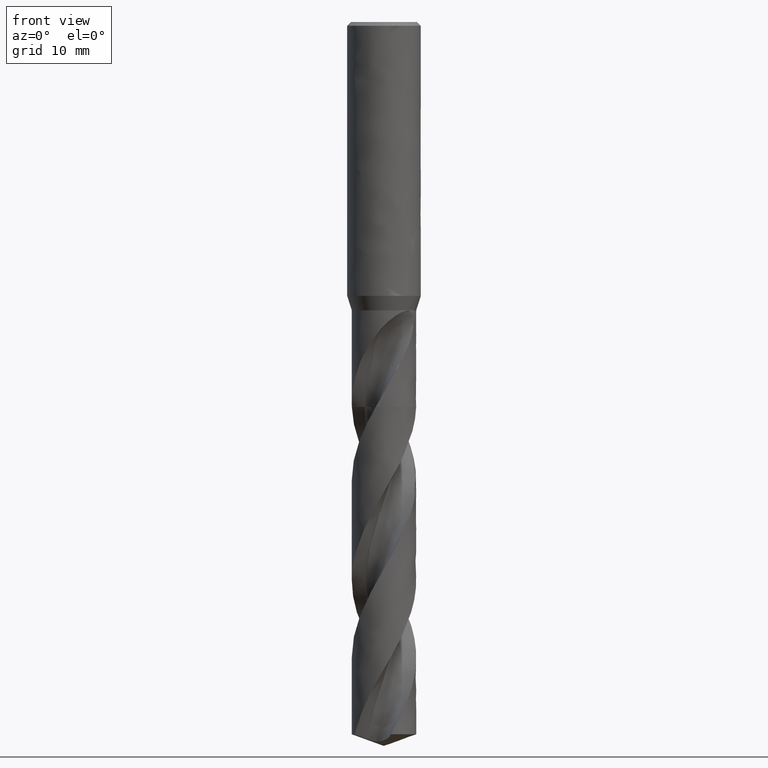
[diagram: clean part render]
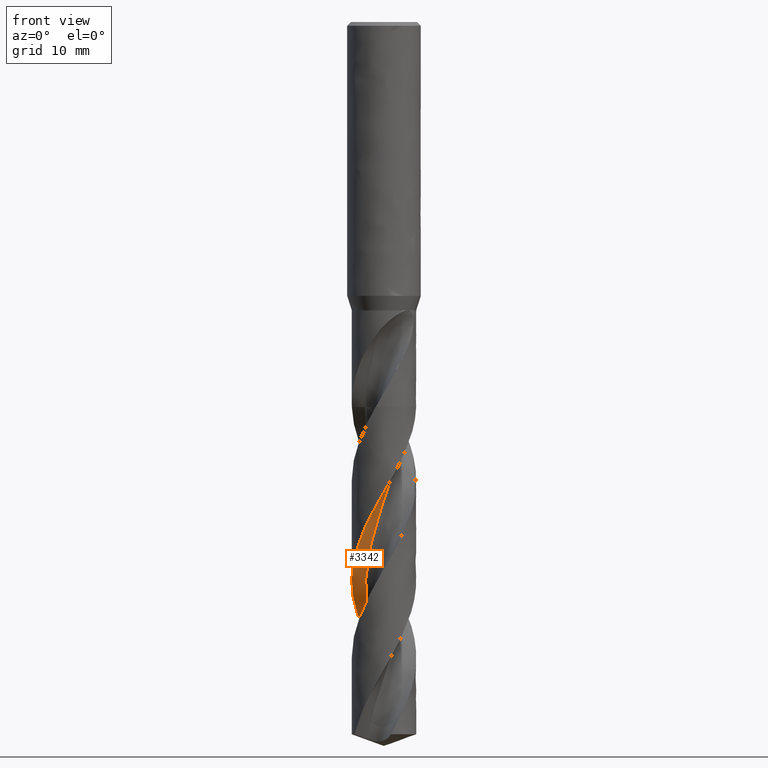
[diagram: same view with one face highlighted and labeled with its STEP entity id]
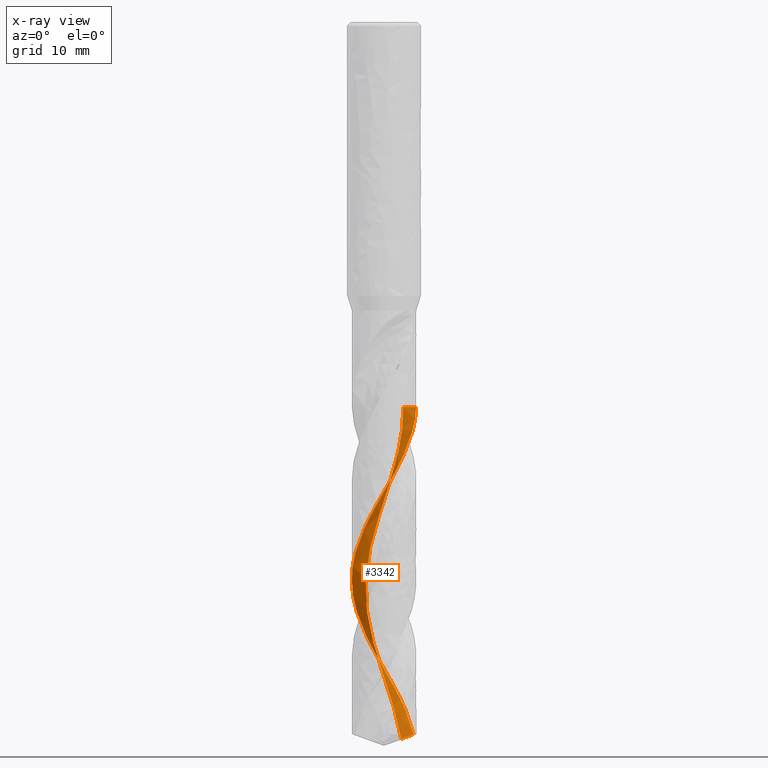
[diagram: x-ray of the same camera — body ghosted, the highlighted face saturated]
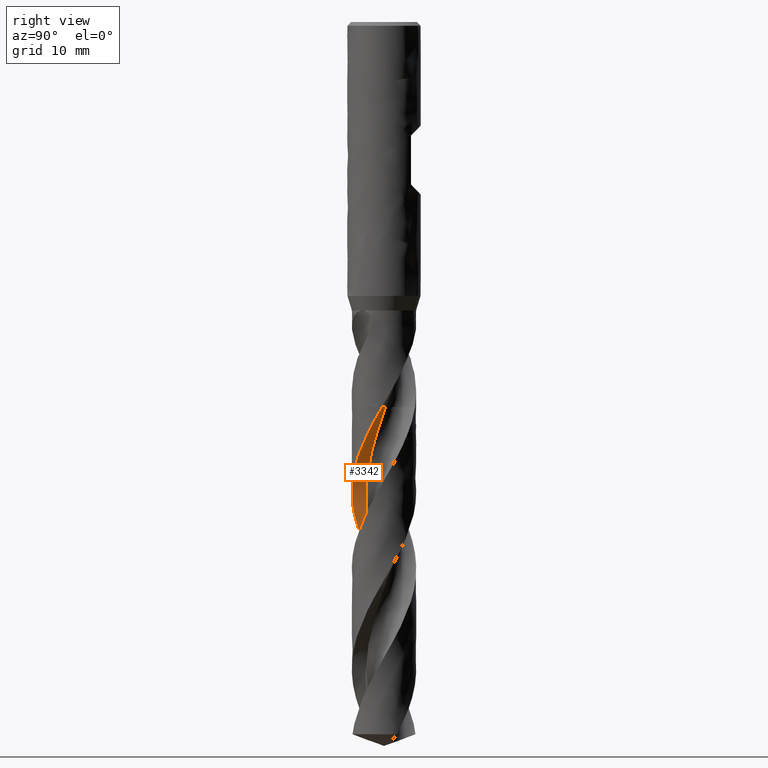
[diagram: same view with one face highlighted and labeled with its STEP entity id]
A machine part, front view. The second image highlights one B-rep face of the part: STEP entity #3342.
The next image is the same camera in x-ray: the body ghosted, the highlighted face saturated — about 0% of this face is hidden behind the body in this view.
A second angle (right view) of the same face is appended — the face is thin or edge-on in the first view.
In plain terms, the highlighted face is a freeform B-spline surface patch.
Its self-contained STEP definition (entity closure, byte-faithful):
#2056 = VERTEX_POINT('', #2057);
#2057 = CARTESIAN_POINT('', (5.24024601005015, -0.319877717500771, -62.75));
#2064 = EDGE_CURVE('', #2056, #2065, #2067, .T.);
#2065 = VERTEX_POINT('', #2066);
#2066 = CARTESIAN_POINT('', (3.1334081568016, 0.248874584782166, -62.75));
#2067 = LINE('', #2068, #2069);
#2068 = CARTESIAN_POINT('', (5.24024601005015, -0.319877717500775, -62.75));
#2069 = VECTOR('', #2070, 2.1822568412616);
#2070 = DIRECTION('', (-2.10683785324854, 0.568752302282938, 0.));
#2786 = EDGE_CURVE('', #2787, #2065, #2789, .T.);
#2787 = VERTEX_POINT('', #2788);
#2788 = CARTESIAN_POINT('', (2.79821184013639, 1.43162568454987, -116.855978291857));
#2789 = B_SPLINE_CURVE_WITH_KNOTS('', 3, (#2790, #2791, #2792, #2793, #2794, #2795, #2796, #2797, #2798, #2799, #2800, #2801, #2802, #2803, #2804, #2805, #2806, #2807, #2808, #2809, #2810, #2811, #2812, #2813, #2814, #2815, #2816, #2817, #2818, #2819, #2820, #2821, #2822, #2823, #2824, #2825, #2826, #2827, #2828, #2829, #2830, #2831, #2832, #2833, #2834, #2835, #2836, #2837, #2838, #2839, #2840, #2841, #2842, #2843, #2844, #2845, #2846, #2847, #2848), .UNSPECIFIED., .F., .U., (4, 1, 1, 1, 1, 1, 1, 1, 1, 1, 1, 1, 1, 1, 1, 1, 1, 1, 1, 1, 1, 1, 1, 1, 1, 1, 1, 1, 1, 1, 1, 1, 1, 1, 1, 1, 1, 1, 1, 1, 1, 1, 1, 1, 1, 1, 1, 1, 1, 1, 1, 1, 1, 1, 1, 1, 4), (1.19402170814299, 1.94712328767123, 2.92068493150685, 3.89424657534247, 4.86780821917808, 5.8413698630137, 6.81493150684932, 7.78849315068493, 8.76205479452055, 9.73561643835616, 10.7091780821918, 11.6827397260274, 12.656301369863, 13.6298630136986, 14.6034246575342, 15.5769863013699, 16.5505479452055, 17.5241095890411, 18.4976712328767, 19.4712328767123, 20.4447945205479, 21.4183561643836, 22.3919178082192, 23.3654794520548, 24.3390410958904, 25.312602739726, 26.2861643835616, 27.2597260273973, 28.2332876712329, 29.2068493150685, 30.1804109589041, 31.1539726027397, 32.1275342465753, 33.101095890411, 34.0746575342466, 35.0482191780822, 36.0217808219178, 36.9953424657534, 37.968904109589, 38.9424657534247, 39.9160273972603, 40.8895890410959, 41.8631506849315, 42.8367123287671, 43.8102739726027, 44.7838356164384, 45.757397260274, 46.7309589041096, 47.7045205479452, 48.6780821917808, 49.6516438356164, 50.6252054794521, 51.5987671232877, 52.5723287671233, 53.5458904109589, 54.5194520547945, 55.3), .UNSPECIFIED.);
#2790 = CARTESIAN_POINT('', (2.79821184013638, 1.43162568454987, -116.855978291857));
#2791 = CARTESIAN_POINT('', (2.75712214684186, 1.5070804061927, -116.604944432014));
#2792 = CARTESIAN_POINT('', (2.65598967799593, 1.67606990976741, -116.029390024226));
#2793 = CARTESIAN_POINT('', (2.47423372732643, 1.92400677676864, -115.129315068493));
#2794 = CARTESIAN_POINT('', (2.25116967736585, 2.16944879818279, -114.155753424658));
#2795 = CARTESIAN_POINT('', (2.00420425036731, 2.3895861067081, -113.182191780822));
#2796 = CARTESIAN_POINT('', (1.73615382624428, 2.58214062600635, -112.208630136986));
#2797 = CARTESIAN_POINT('', (1.45004508709054, 2.74514078872854, -111.235068493151));
#2798 = CARTESIAN_POINT('', (1.14908410278058, 2.87694196060475, -110.261506849315));
#2799 = CARTESIAN_POINT('', (0.836621102513387, 2.97624172467088, -109.287945205479));
#2800 = CARTESIAN_POINT('', (0.516114663338234, 3.04209199386261, -108.314383561644));
#2801 = CARTESIAN_POINT('', (0.19109478275684, 3.07390728948075, -107.340821917808));
#2802 = CARTESIAN_POINT('', (-0.134874545802901, 3.07146927486186, -106.367260273973));
#2803 = CARTESIAN_POINT('', (-0.458232939868773, 3.0349274795123, -105.393698630137));
#2804 = CARTESIAN_POINT('', (-0.775461020951674, 2.96479623763426, -104.420136986301));
#2805 = CARTESIAN_POINT('', (-1.08311722391051, 2.86194788817522, -103.446575342466));
#2806 = CARTESIAN_POINT('', (-1.37787365482435, 2.72760232342942, -102.47301369863));
#2807 = CARTESIAN_POINT('', (-1.65655064241312, 2.56331300738392, -101.499452054795));
#2808 = CARTESIAN_POINT('', (-1.91614964219238, 2.37094961904654, -100.525890410959));
#2809 = CARTESIAN_POINT('', (-2.15388417034934, 2.15267750803564, -99.5523287671233));
#2810 = CARTESIAN_POINT('', (-2.36720846492319, 1.91093417990146, -98.5787671232877));
#2811 = CARTESIAN_POINT('', (-2.55384359523886, 1.64840305661178, -97.6052054794521));
#2812 = CARTESIAN_POINT('', (-2.71180076640357, 1.36798478316551, -96.6316438356164));
#2813 = CARTESIAN_POINT('', (-2.83940159379618, 1.07276637417313, -95.6580821917808));
#2814 = CARTESIAN_POINT('', (-2.93529515259231, 0.765988514274105, -94.6845205479452));
#2815 = CARTESIAN_POINT('', (-2.99847163919656, 0.451011343282998, -93.7109589041096));
#2816 = CARTESIAN_POINT('', (-3.02827251470304, 0.131279070828892, -92.737397260274));
#2817 = CARTESIAN_POINT('', (-3.02439703487661, -0.189716224134706, -91.7638356164384));
#2818 = CARTESIAN_POINT('', (-2.98690510632807, -0.508471246303968, -90.7902739726027));
#2819 = CARTESIAN_POINT('', (-2.91621644423224, -0.821508222969054, -89.8167123287671));
#2820 = CARTESIAN_POINT('', (-2.81310604278971, -1.12541136197293, -88.8431506849315));
#2821 = CARTESIAN_POINT('', (-2.67869600534055, -1.41686266471232, -87.8695890410959));
#2822 = CARTESIAN_POINT('', (-2.5144438162857, -1.69267673658662, -86.8960273972603));
#2823 = CARTESIAN_POINT('', (-2.32212717144373, -1.94983424701387, -85.9224657534247));
#2824 = CARTESIAN_POINT('', (-2.10382551686197, -2.18551370409742, -84.9489041095891));
#2825 = CARTESIAN_POINT('', (-1.86189847811263, -2.39712122512495, -83.9753424657534));
#2826 = CARTESIAN_POINT('', (-1.59896139245043, -2.58231800317807, -83.0017808219178));
#2827 = CARTESIAN_POINT('', (-1.31785818461492, -2.73904519205562, -82.0282191780822));
#2828 = CARTESIAN_POINT('', (-1.02163185327022, -2.86554595628161, -81.0546575342466));
#2829 = CARTESIAN_POINT('', (-0.713492858847356, -2.96038445996452, -80.081095890411));
#2830 = CARTESIAN_POINT('', (-0.396785724668816, -3.02246159746644, -79.1075342465753));
#2831 = CARTESIAN_POINT('', (-0.0749541814927044, -3.05102729997496, -78.1339726027397));
#2832 = CARTESIAN_POINT('', (0.248494799163272, -3.04568928487573, -77.1604109589041));
#2833 = CARTESIAN_POINT('', (0.570027725516175, -3.00641814901605, -76.1868493150685));
#2834 = CARTESIAN_POINT('', (0.886121693711166, -2.93354874221941, -75.2132876712329));
#2835 = CARTESIAN_POINT('', (1.19330151223743, -2.82777779347776, -74.2397260273973));
#2836 = CARTESIAN_POINT('', (1.48817646939561, -2.69015779867668, -73.2661643835616));
#2837 = CARTESIAN_POINT('', (1.76747637178634, -2.52208721559386, -72.292602739726));
#2838 = CARTESIAN_POINT('', (2.02808648901892, -2.32529704734645, -71.3190410958904));
#2839 = CARTESIAN_POINT('', (2.26708104103188, -2.10183393498828, -70.3454794520548));
#2840 = CARTESIAN_POINT('', (2.4817549047093, -1.85403990132322, -69.3719178082192));
#2841 = CARTESIAN_POINT('', (2.66965312713995, -1.58452897267362, -68.3983561643836));
#2842 = CARTESIAN_POINT('', (2.82859824319863, -1.29616074773671, -67.4247945205479));
#2843 = CARTESIAN_POINT('', (2.95671395599351, -0.992011721723331, -66.4512328767123));
#2844 = CARTESIAN_POINT('', (3.05244921651772, -0.675342557634139, -65.4776712328767));
#2845 = CARTESIAN_POINT('', (3.11458641609078, -0.349569392316449, -64.5041095890411));
#2846 = CARTESIAN_POINT('', (3.14046236696781, -0.0401083352556175, -63.5948858447489));
#2847 = CARTESIAN_POINT('', (3.13816336359385, 0.15994654027839, -63.0101826484018));
#2848 = CARTESIAN_POINT('', (3.1334081568016, 0.248874584782166, -62.75));
#3342 = ADVANCED_FACE('', (#3343), #3588, .T.);
#3343 = FACE_OUTER_BOUND('', #3344, .T.);
#3344 = EDGE_LOOP('', (#3345, #3346, #3460, #3556, #3587));
#3345 = ORIENTED_EDGE('', *, *, #2064, .F.);
#3346 = ORIENTED_EDGE('', *, *, #3347, .T.);
#3347 = EDGE_CURVE('', #2056, #3348, #3350, .T.);
#3348 = VERTEX_POINT('', #3349);
#3349 = CARTESIAN_POINT('', (-5.25, 5.89236742624732E-15, -90.9796627950167));
#3350 = B_SPLINE_CURVE_WITH_KNOTS('', 3, (#3351, #3352, #3353, #3354, #3355, #3356, #3357, #3358, #3359, #3360, #3361, #3362, #3363, #3364, #3365, #3366, #3367, #3368, #3369, #3370, #3371, #3372, #3373, #3374, #3375, #3376, #3377, #3378, #3379, #3380, #3381, #3382, #3383, #3384, #3385, #3386, #3387, #3388, #3389, #3390, #3391, #3392, #3393, #3394, #3395, #3396, #3397, #3398, #3399, #3400, #3401, #3402, #3403, #3404, #3405, #3406, #3407, #3408, #3409, #3410, #3411, #3412, #3413, #3414, #3415, #3416, #3417, #3418, #3419, #3420, #3421, #3422, #3423, #3424, #3425, #3426, #3427, #3428, #3429, #3430, #3431, #3432, #3433, #3434, #3435, #3436, #3437, #3438, #3439, #3440, #3441, #3442, #3443, #3444, #3445, #3446, #3447, #3448, #3449, #3450, #3451, #3452, #3453, #3454, #3455, #3456, #3457, #3458, #3459), .UNSPECIFIED., .F., .U., (4, 3, 3, 3, 3, 3, 3, 3, 3, 3, 3, 3, 3, 3, 3, 3, 3, 3, 3, 3, 3, 3, 3, 3, 3, 3, 3, 3, 3, 3, 3, 3, 3, 3, 3, 3, 4), (14.9688680659142, 15.0260842238977, 16.0257031560949, 17.0250078426944, 18.024000214281, 19.0226939592272, 20.0210955277888, 21.0192118940035, 22.0170479268412, 23.014607262398, 24.0118921935853, 25.0089037212964, 26.0056415733878, 27.0021041892136, 27.9982887869922, 28.9941914605201, 29.9898069228699, 30.6538739336762, 30.8508340877513, 30.938403012127, 31.9382323911899, 32.9377349861407, 33.9369236081959, 34.9358089604225, 35.9343998715412, 36.9327036311775, 37.9307261152791, 38.9284717998922, 39.9259438375042, 40.9231441075055, 41.9200732430161, 42.9167306353677, 43.9131144166665, 44.9092214245279, 45.90504725292, 46.9005861803001, 47.5004139305596), .UNSPECIFIED.);
#3351 = CARTESIAN_POINT('', (5.24024601005015, -0.319877717500771, -62.75));
#3352 = CARTESIAN_POINT('', (5.23966712103333, -0.329361094099611, -62.766537038686));
#3353 = CARTESIAN_POINT('', (5.2390624758765, -0.338843090361348, -62.7830746295433));
#3354 = CARTESIAN_POINT('', (5.23843212116814, -0.348322999404445, -62.7996117747076));
#3355 = CARTESIAN_POINT('', (5.22741924433967, -0.513945734117226, -63.0885309187637));
#3356 = CARTESIAN_POINT('', (5.20854260749343, -0.679062865483781, -63.3775471540164));
#3357 = CARTESIAN_POINT('', (5.18189842596892, -0.842869327324477, -63.6664830918331));
#3358 = CARTESIAN_POINT('', (5.15526262045297, -1.00662429408256, -63.9553281981904));
#3359 = CARTESIAN_POINT('', (5.12084880734559, -1.16915656477089, -64.2442560919104));
#3360 = CARTESIAN_POINT('', (5.07883470131806, -1.32963832551899, -64.5331108479762));
#3361 = CARTESIAN_POINT('', (5.0368337260566, -1.49006993052995, -64.8218753275948));
#3362 = CARTESIAN_POINT('', (4.98721424114837, -1.64854142266862, -65.1107273773568));
#3363 = CARTESIAN_POINT('', (4.93022882996327, -1.80425710036001, -65.3995051416182));
#3364 = CARTESIAN_POINT('', (4.87326045330454, -1.9599262302989, -65.6881965821639));
#3365 = CARTESIAN_POINT('', (4.80889853796367, -2.11292839126693, -65.9769736605336));
#3366 = CARTESIAN_POINT('', (4.73747038938871, -2.26249294135151, -66.2656767723086));
#3367 = CARTESIAN_POINT('', (4.66606313772865, -2.41201373504957, -66.5542954215225));
#3368 = CARTESIAN_POINT('', (4.58755409449519, -2.55818214068134, -66.8430001244535));
#3369 = CARTESIAN_POINT('', (4.5023411296256, -2.70026375609526, -67.1316309495421));
#3370 = CARTESIAN_POINT('', (4.41715250660235, -2.84230478462366, -67.4201793246514));
#3371 = CARTESIAN_POINT('', (4.32521651120956, -2.98034024360326, -67.708813681031));
#3372 = CARTESIAN_POINT('', (4.22699778102286, -3.11367785090684, -67.9973740448637));
#3373 = CARTESIAN_POINT('', (4.1288066367863, -3.2469780086875, -68.2858533629346));
#3374 = CARTESIAN_POINT('', (4.02428224523727, -3.37565636677333, -68.5744187247562));
#3375 = CARTESIAN_POINT('', (3.91395159676723, -3.49906886159207, -68.8629100659716));
#3376 = CARTESIAN_POINT('', (3.8036515426929, -3.62244713445388, -69.1513214093045));
#3377 = CARTESIAN_POINT('', (3.68748811699465, -3.74062999398604, -69.4398188295373));
#3378 = CARTESIAN_POINT('', (3.56604572655345, -3.85302710555348, -69.7282421958263));
#3379 = CARTESIAN_POINT('', (3.4446367419673, -3.96539329940263, -70.0165862238453));
#3380 = CARTESIAN_POINT('', (3.31788559450252, -4.07203813100751, -70.3050162835063));
#3381 = CARTESIAN_POINT('', (3.18642890354547, -4.17242984873922, -70.593372353264));
#3382 = CARTESIAN_POINT('', (3.05500825115189, -4.27279404430173, -70.8816493708377));
#3383 = CARTESIAN_POINT('', (2.91881315256117, -4.36696315335555, -71.1700122805115));
#3384 = CARTESIAN_POINT('', (2.77852687298224, -4.45446836514926, -71.4583013648669));
#3385 = CARTESIAN_POINT('', (2.63827910141792, -4.54194955711733, -71.7465113150382));
#3386 = CARTESIAN_POINT('', (2.49386586122091, -4.62281824121105, -72.0348068977431));
#3387 = CARTESIAN_POINT('', (2.34601122623537, -4.69667236736581, -72.3230289418651));
#3388 = CARTESIAN_POINT('', (2.19819741939487, -4.77050609965889, -72.6111713971976));
#3389 = CARTESIAN_POINT('', (2.04686287106071, -4.83736971521691, -72.8993991376746));
#3390 = CARTESIAN_POINT('', (1.89276617528355, -4.89693130498095, -73.1875536820729));
#3391 = CARTESIAN_POINT('', (1.73871247325421, -4.95647627676394, -73.4756278299139));
#3392 = CARTESIAN_POINT('', (1.58181291656034, -5.00875624508358, -73.7637869888822));
#3393 = CARTESIAN_POINT('', (1.42285346173849, -5.05351244447056, -74.0518731492008));
#3394 = CARTESIAN_POINT('', (1.26393899308217, -5.09825597767298, -74.3398777799765));
#3395 = CARTESIAN_POINT('', (1.10287784570432, -5.13550478149183, -74.6279673480361));
#3396 = CARTESIAN_POINT('', (0.940475652696822, -5.1650755605978, -74.9159839381649));
#3397 = CARTESIAN_POINT('', (0.778120295315369, -5.19463781170347, -75.2039174663777));
#3398 = CARTESIAN_POINT('', (0.614335311228707, -5.21654276732008, -75.491935976695));
#3399 = CARTESIAN_POINT('', (0.449938405644798, -5.23068403090136, -75.7798814359902));
#3400 = CARTESIAN_POINT('', (0.340287073574008, -5.24011613294333, -75.9719385982787));
#3401 = CARTESIAN_POINT('', (0.230330534271585, -5.2460993313729, -76.1640220346262));
#3402 = CARTESIAN_POINT('', (0.120312401114331, -5.24862124049146, -76.3560844804899));
#3403 = CARTESIAN_POINT('', (0.0876813742675234, -5.24936923067991, -76.4130495883988));
#3404 = CARTESIAN_POINT('', (0.0550434185966156, -5.24981290261519, -76.4700155362941));
#3405 = CARTESIAN_POINT('', (0.0224049291365836, -5.24995219208235, -76.5269811094562));
#3406 = CARTESIAN_POINT('', (0.00789378383064761, -5.25001412049053, -76.5523081305061));
#3407 = CARTESIAN_POINT('', (-0.00661756717172762, -5.25001588380369, -76.5776352522724));
#3408 = CARTESIAN_POINT('', (-0.0211285621682599, -5.24995748400505, -76.6029623678238));
#3409 = CARTESIAN_POINT('', (-0.186809701001509, -5.24929069684485, -76.8921379446137));
#3410 = CARTESIAN_POINT('', (-0.352493745323446, -5.2407720679147, -77.1813998943132));
#3411 = CARTESIAN_POINT('', (-0.517348869656438, -5.22444735326763, -77.4705875328021));
#3412 = CARTESIAN_POINT('', (-0.68215011276072, -5.2081279741883, -77.7596806532385));
#3413 = CARTESIAN_POINT('', (-0.846212513137835, -5.18399876218975, -78.0488600736166));
#3414 = CARTESIAN_POINT('', (-1.00871354762849, -5.15218370973253, -78.3379652800251));
#3415 = CARTESIAN_POINT('', (-1.17116353580813, -5.12037865131053, -78.6269796700624));
#3416 = CARTESIAN_POINT('', (-1.332141398755, -5.08087530344493, -78.9160801673941));
#3417 = CARTESIAN_POINT('', (-1.49084077512361, -5.03387462927215, -79.2051066758962));
#3418 = CARTESIAN_POINT('', (-1.64949198367725, -4.98688822056045, -79.4940454602011));
#3419 = CARTESIAN_POINT('', (-1.80595274704935, -4.93238335691501, -79.7830700166711));
#3420 = CARTESIAN_POINT('', (-1.95943952121383, -4.87063617638453, -80.0720209562921));
#3421 = CARTESIAN_POINT('', (-2.11288105213218, -4.80890719705022, -80.3608867219394));
#3422 = CARTESIAN_POINT('', (-2.26343495718692, -4.7399061136944, -80.6498378627509));
#3423 = CARTESIAN_POINT('', (-2.41034737703665, -4.66398172402215, -80.9387157414644));
#3424 = CARTESIAN_POINT('', (-2.55721755123939, -4.58807916691495, -81.2275105514155));
#3425 = CARTESIAN_POINT('', (-2.70052982241176, -4.50521517502392, -81.5163905029161));
#3426 = CARTESIAN_POINT('', (-2.83956723975815, -4.41580772802579, -81.8051973475361));
#3427 = CARTESIAN_POINT('', (-2.97856548283164, -4.32642547188487, -82.0939228198294));
#3428 = CARTESIAN_POINT('', (-3.11336829362876, -4.23045395279705, -82.3827334047393));
#3429 = CARTESIAN_POINT('', (-3.24330246274528, -4.12837608935407, -82.6714708618387));
#3430 = CARTESIAN_POINT('', (-3.37320059488655, -4.0263265369971, -82.9601282381969));
#3431 = CARTESIAN_POINT('', (-3.49830426208016, -3.91811791818281, -83.2488708114367));
#3432 = CARTESIAN_POINT('', (-3.61799008042615, -3.8042933348965, -83.5375401480878));
#3433 = CARTESIAN_POINT('', (-3.73764307310748, -3.69049996974157, -83.8261303127619));
#3434 = CARTESIAN_POINT('', (-3.85194641987162, -3.57103173397283, -84.1148057907955));
#3435 = CARTESIAN_POINT('', (-3.96033192579063, -3.4464867673565, -84.4034079133704));
#3436 = CARTESIAN_POINT('', (-4.06868790138811, -3.32197573380971, -84.6919314044586));
#3437 = CARTESIAN_POINT('', (-4.17118781201211, -3.1923235020801, -84.980540287253));
#3438 = CARTESIAN_POINT('', (-4.26732333702956, -3.05817781321538, -85.2690757527003));
#3439 = CARTESIAN_POINT('', (-4.36343272320871, -2.92406859799004, -85.557532766588));
#3440 = CARTESIAN_POINT('', (-4.45323280823631, -2.78539636759098, -85.8460751528369));
#3441 = CARTESIAN_POINT('', (-4.53627920356441, -2.64285281226727, -86.1345441730796));
#3442 = CARTESIAN_POINT('', (-4.61930296208814, -2.50034811149664, -86.4229345623745));
#3443 = CARTESIAN_POINT('', (-4.69562126085119, -2.35389773741419, -86.711410158358));
#3444 = CARTESIAN_POINT('', (-4.76485712626602, -2.20423151376436, -86.9998125981837));
#3445 = CARTESIAN_POINT('', (-4.8340739844491, -2.05460637778753, -87.2881358632641));
#3446 = CARTESIAN_POINT('', (-4.89624964051928, -1.901686391867, -87.576543985647));
#3447 = CARTESIAN_POINT('', (-4.95107749304406, -1.74623356337935, -87.8648793540329));
#3448 = CARTESIAN_POINT('', (-5.00589011560074, -1.59082391625865, -88.1531346292131));
#3449 = CARTESIAN_POINT('', (-5.05338892381314, -1.43279796563538, -88.4414743107911));
#3450 = CARTESIAN_POINT('', (-5.09334029407812, -1.27294330145547, -88.7297416520437));
#3451 = CARTESIAN_POINT('', (-5.13328038693514, -1.11313376079069, -89.0179276216591));
#3452 = CARTESIAN_POINT('', (-5.16569929271198, -0.95140854314499, -89.3061977188048));
#3453 = CARTESIAN_POINT('', (-5.19043855548729, -0.788573142905187, -89.5943956624028));
#3454 = CARTESIAN_POINT('', (-5.21517069079179, -0.625784656131373, -89.8825105751341));
#3455 = CARTESIAN_POINT('', (-5.23224123773791, -0.461797070414561, -90.1707095833986));
#3456 = CARTESIAN_POINT('', (-5.24156826593926, -0.297425811757177, -90.4588364109474));
#3457 = CARTESIAN_POINT('', (-5.24718794608311, -0.198389561565276, -90.6324373239853));
#3458 = CARTESIAN_POINT('', (-5.25, -0.0991881568640129, -90.8060576505004));
#3459 = CARTESIAN_POINT('', (-5.25, 5.54368800757598E-15, -90.9796627950167));
#3460 = ORIENTED_EDGE('', *, *, #3461, .F.);
#3461 = EDGE_CURVE('', #3462, #3348, #3464, .T.);
#3462 = VERTEX_POINT('', #3463);
#3463 = CARTESIAN_POINT('', (4.80287028202575, 2.12012665990358, -116.089156270102));
#3464 = B_SPLINE_CURVE_WITH_KNOTS('', 3, (#3465, #3466, #3467, #3468, #3469, #3470, #3471, #3472, #3473, #3474, #3475, #3476, #3477, #3478, #3479, #3480, #3481, #3482, #3483, #3484, #3485, #3486, #3487, #3488, #3489, #3490, #3491, #3492, #3493, #3494, #3495, #3496, #3497, #3498, #3499, #3500, #3501, #3502, #3503, #3504, #3505, #3506, #3507, #3508, #3509, #3510, #3511, #3512, #3513, #3514, #3515, #3516, #3517, #3518, #3519, #3520, #3521, #3522, #3523, #3524, #3525, #3526, #3527, #3528, #3529, #3530, #3531, #3532, #3533, #3534, #3535, #3536, #3537, #3538, #3539, #3540, #3541, #3542, #3543, #3544, #3545, #3546, #3547, #3548, #3549, #3550, #3551, #3552, #3553, #3554, #3555), .UNSPECIFIED., .F., .U., (4, 3, 3, 3, 3, 3, 3, 3, 3, 3, 3, 3, 3, 3, 3, 3, 3, 3, 3, 3, 3, 3, 3, 3, 3, 3, 3, 3, 3, 3, 4), (0., 0.998476892731745, 1.99667517175775, 2.99459945694597, 3.99225321677274, 4.98963867367258, 5.9867568062712, 6.98360737422144, 7.98018891065984, 8.97649868567247, 9.97253265852171, 10.9682855076789, 11.9637506913314, 12.2591249051962, 13.258941329395, 14.2584369561428, 15.2576239874839, 16.2565126250731, 17.2551112835027, 18.2534267572483, 19.2514643492285, 20.2492279669098, 21.2467201903225, 22.2439423267237, 23.2408945999594, 24.2375761083415, 25.2339847347232, 26.2301171026012, 27.2259685086889, 28.2215328296206, 28.898817715189), .UNSPECIFIED.);
#3465 = CARTESIAN_POINT('', (4.80287028202576, 2.12012665990357, -116.089156270102));
#3466 = CARTESIAN_POINT('', (4.73644094104236, 2.27061366320281, -115.799823062389));
#3467 = CARTESIAN_POINT('', (4.66290923721738, 2.41802473122039, -115.510417485511));
#3468 = CARTESIAN_POINT('', (4.58263608362685, 2.56162966196154, -115.221096305383));
#3469 = CARTESIAN_POINT('', (4.50238532935368, 2.70519452136784, -114.931855857065));
#3470 = CARTESIAN_POINT('', (4.41535442904348, 2.8450313494641, -114.642543010363));
#3471 = CARTESIAN_POINT('', (4.32197075278374, 2.98044775362395, -114.353314768564));
#3472 = CARTESIAN_POINT('', (4.22861270925888, 3.11582698755313, -114.06416591656));
#3473 = CARTESIAN_POINT('', (4.12885646585285, 3.24685917806179, -113.774944448959));
#3474 = CARTESIAN_POINT('', (4.02319194850216, 3.37289586935432, -113.485807661078));
#3475 = CARTESIAN_POINT('', (3.9175560755408, 3.49889839360435, -113.196749254728));
#3476 = CARTESIAN_POINT('', (3.80595975972225, 3.61997414556685, -112.907618361791));
#3477 = CARTESIAN_POINT('', (3.68895173850908, 3.73552339986659, -112.618571948809));
#3478 = CARTESIAN_POINT('', (3.57197518472061, 3.85104157905353, -112.329603270209));
#3479 = CARTESIAN_POINT('', (3.44952796834872, 3.96109728064261, -112.040562393185));
#3480 = CARTESIAN_POINT('', (3.32221318575102, 4.06514446833346, -111.751605666431));
#3481 = CARTESIAN_POINT('', (3.19493252670611, 4.16916376877014, -111.462726387323));
#3482 = CARTESIAN_POINT('', (3.06271870736118, 4.26723345941724, -111.173775284095));
#3483 = CARTESIAN_POINT('', (2.92622414206581, 4.35886593856605, -110.884907941984));
#3484 = CARTESIAN_POINT('', (2.78976620344402, 4.45047382924208, -110.596118113947));
#3485 = CARTESIAN_POINT('', (2.64895570830606, 4.53569766804187, -110.307256808139));
#3486 = CARTESIAN_POINT('', (2.50448859069148, 4.6141127965294, -110.018478936797));
#3487 = CARTESIAN_POINT('', (2.36006046207717, 4.69250676222558, -109.729779001255));
#3488 = CARTESIAN_POINT('', (2.21189852052003, 4.76413863880651, -109.441007794634));
#3489 = CARTESIAN_POINT('', (2.06073564426924, 4.82865080580884, -109.152319872949));
#3490 = CARTESIAN_POINT('', (1.90961398917023, 4.89314538075488, -108.863710674618));
#3491 = CARTESIAN_POINT('', (1.75541016889092, 4.950559507233, -108.575030140442));
#3492 = CARTESIAN_POINT('', (1.59888658869046, 5.00060613091114, -108.286433053661));
#3493 = CARTESIAN_POINT('', (1.44240633792742, 5.05063890049749, -107.997915857396));
#3494 = CARTESIAN_POINT('', (1.28352283724432, 5.09333540028257, -107.709326932626));
#3495 = CARTESIAN_POINT('', (1.12302017880713, 5.12848181024296, -107.420821913686));
#3496 = CARTESIAN_POINT('', (0.96256282113393, 5.16361830037249, -107.132398323289));
#3497 = CARTESIAN_POINT('', (0.800401935680769, 5.19122768199525, -106.843902559188));
#3498 = CARTESIAN_POINT('', (0.637336389566572, 5.21117091703354, -106.555491049165));
#3499 = CARTESIAN_POINT('', (0.474317951861505, 5.23110839062132, -106.267162859057));
#3500 = CARTESIAN_POINT('', (0.310309707974791, 5.24339463647859, -105.978762340195));
#3501 = CARTESIAN_POINT('', (0.146119179736999, 5.24796619513858, -105.690446141579));
#3502 = CARTESIAN_POINT('', (0.097400601730737, 5.24932266703484, -105.60489702152));
#3503 = CARTESIAN_POINT('', (0.0486610280052294, 5.25000072548645, -105.519346409148));
#3504 = CARTESIAN_POINT('', (-7.82093110105733E-5, 5.24999999941746, -105.433798302523));
#3505 = CARTESIAN_POINT('', (-0.165056354607041, 5.24999754173612, -105.144225286167));
#3506 = CARTESIAN_POINT('', (-0.330089327719741, 5.24221001972082, -104.854579258365));
#3507 = CARTESIAN_POINT('', (-0.494355761605966, 5.2266731656923, -104.565018444203));
#3508 = CARTESIAN_POINT('', (-0.658569489563407, 5.2111412967621, -104.275550537467));
#3509 = CARTESIAN_POINT('', (-0.82210462480596, 5.18785682013376, -103.986009374774));
#3510 = CARTESIAN_POINT('', (-0.984148091526634, 5.15693247327758, -103.696553581782));
#3511 = CARTESIAN_POINT('', (-1.14614152714343, 5.12601767434853, -103.407187158593));
#3512 = CARTESIAN_POINT('', (-1.30673007566236, 5.08745133405916, -103.117747477672));
#3513 = CARTESIAN_POINT('', (-1.46511530214854, 5.04142213580755, -102.828393096707));
#3514 = CARTESIAN_POINT('', (-1.62345322901965, 4.99540668355616, -102.539125127532));
#3515 = CARTESIAN_POINT('', (-1.77967336630507, 4.9419083325358, -102.249784082458));
#3516 = CARTESIAN_POINT('', (-1.93299838053323, 4.88119014799219, -101.960528104127));
#3517 = CARTESIAN_POINT('', (-2.08627888423528, 4.82048959004624, -101.671356097324));
#3518 = CARTESIAN_POINT('', (-2.23674821517601, 4.75254077425698, -101.382111309934));
#3519 = CARTESIAN_POINT('', (-2.38365669854542, 4.67767899106807, -101.092951266013));
#3520 = CARTESIAN_POINT('', (-2.53052352130166, 4.6028384373393, -100.803873222699));
#3521 = CARTESIAN_POINT('', (-2.67391125379668, 4.52104816325844, -100.514722726247));
#3522 = CARTESIAN_POINT('', (-2.81310449376813, 4.43271283833519, -100.225656644611));
#3523 = CARTESIAN_POINT('', (-2.95225898921013, 4.34440210160744, -99.9366710247075));
#3524 = CARTESIAN_POINT('', (-3.08729766867526, 4.24950147604649, -99.6476132184908));
#3525 = CARTESIAN_POINT('', (-3.21754600423583, 4.14848137402424, -99.3586395892353));
#3526 = CARTESIAN_POINT('', (-3.34775858493438, 4.0474890033338, -99.0697452869993));
#3527 = CARTESIAN_POINT('', (-3.47325528584778, 3.94032479099665, -98.7807789002178));
#3528 = CARTESIAN_POINT('', (-3.59340894314284, 3.82752036798514, -98.4918966512617));
#3529 = CARTESIAN_POINT('', (-3.71352991833426, 3.71474662806665, -98.2030929790199));
#3530 = CARTESIAN_POINT('', (-3.82837679835787, 3.59627377603052, -97.9142170467073));
#3531 = CARTESIAN_POINT('', (-3.93737601479352, 3.47268917672295, -97.6254255235856));
#3532 = CARTESIAN_POINT('', (-4.04634571794383, 3.34913803992698, -97.3367121953988));
#3533 = CARTESIAN_POINT('', (-4.14953001700432, 3.22041098644092, -97.0479262135948));
#3534 = CARTESIAN_POINT('', (-4.24641421808386, 3.08714532998615, -96.7592250153434));
#3535 = CARTESIAN_POINT('', (-4.34327220085533, 2.95391573720325, -96.470601943937));
#3536 = CARTESIAN_POINT('', (-4.43388528740371, 2.81607879987178, -96.1819059434629));
#3537 = CARTESIAN_POINT('', (-4.51780167681386, 2.67431636291931, -95.8932949221463));
#3538 = CARTESIAN_POINT('', (-4.60169527515415, 2.53259242759476, -95.6047622854455));
#3539 = CARTESIAN_POINT('', (-4.67894039145612, 2.3868698201086, -95.3161566731731));
#3540 = CARTESIAN_POINT('', (-4.74915154983304, 2.23786942351839, -95.0276360202153));
#3541 = CARTESIAN_POINT('', (-4.81934348505674, 2.08890982183202, -94.7391943614921));
#3542 = CARTESIAN_POINT('', (-4.88254266626438, 1.93659491567541, -94.4506798602583));
#3543 = CARTESIAN_POINT('', (-4.93843303787573, 1.78167873939656, -94.1622501359228));
#3544 = CARTESIAN_POINT('', (-4.99430791364529, 1.62680551428244, -93.8739003799476));
#3545 = CARTESIAN_POINT('', (-5.04290797411439, 1.46924938251802, -93.5854780328424));
#3546 = CARTESIAN_POINT('', (-5.08398927951759, 1.30979120692985, -93.2971401824743));
#3547 = CARTESIAN_POINT('', (-5.12505899782908, 1.15037800694524, -93.0088836585656));
#3548 = CARTESIAN_POINT('', (-5.15863642388147, 0.988977450341728, -92.7205548397884));
#3549 = CARTESIAN_POINT('', (-5.18455194264072, 0.826390436816456, -92.4323102169629));
#3550 = CARTESIAN_POINT('', (-5.21045999044527, 0.663850294057124, -92.1441486896194));
#3551 = CARTESIAN_POINT('', (-5.22872469568695, 0.500035452692665, -91.8559151225546));
#3552 = CARTESIAN_POINT('', (-5.23925238082881, 0.335759571692061, -91.567765519818));
#3553 = CARTESIAN_POINT('', (-5.24641439123506, 0.224002280951646, -91.3717366278491));
#3554 = CARTESIAN_POINT('', (-5.25, 0.111996551413841, -91.1756859706483));
#3555 = CARTESIAN_POINT('', (-5.25, 5.54368800757598E-15, -90.9796627950167));
#3556 = ORIENTED_EDGE('', *, *, #3557, .F.);
#3557 = EDGE_CURVE('', #2787, #3462, #3558, .T.);
#3558 = B_SPLINE_CURVE_WITH_KNOTS('', 3, (#3559, #3560, #3561, #3562, #3563, #3564, #3565, #3566, #3567, #3568, #3569, #3570, #3571, #3572, #3573, #3574, #3575, #3576, #3577, #3578, #3579, #3580, #3581, #3582, #3583, #3584, #3585, #3586), .UNSPECIFIED., .F., .U., (4, 3, 3, 3, 3, 3, 3, 3, 3, 4), (0., 0.197193885462756, 0.394360118179341, 0.591505673706058, 0.887259958470022, 1.18298105013884, 1.47868339816588, 1.77437722860369, 2.0700698387738, 2.25653832523818), .UNSPECIFIED.);
#3559 = CARTESIAN_POINT('', (2.79821184013639, 1.43162568454987, -116.855978291857));
#3560 = CARTESIAN_POINT('', (2.85834125792542, 1.44655505287248, -116.834019916678));
#3561 = CARTESIAN_POINT('', (2.91833471599972, 1.46194243693141, -116.811995404484));
#3562 = CARTESIAN_POINT('', (2.97818640063821, 1.47778496985119, -116.789918421917));
#3563 = CARTESIAN_POINT('', (3.0380296921998, 1.49362528115268, -116.767844535232));
#3564 = CARTESIAN_POINT('', (3.09773442368965, 1.50992145431393, -116.745716976552));
#3565 = CARTESIAN_POINT('', (3.15729415339573, 1.5266703366593, -116.723547064104));
#3566 = CARTESIAN_POINT('', (3.21684763696208, 1.54341746251819, -116.701379476657));
#3567 = CARTESIAN_POINT('', (3.27625927990947, 1.56061808371625, -116.679168345138));
#3568 = CARTESIAN_POINT('', (3.33552217284558, 1.57826879373412, -116.656923176688));
#3569 = CARTESIAN_POINT('', (3.42442731943402, 1.60474807754533, -116.623551367383));
#3570 = CARTESIAN_POINT('', (3.51300644356472, 1.63224298211166, -116.590099909568));
#3571 = CARTESIAN_POINT('', (3.60123481897679, 1.66074104243487, -116.556595140545));
#3572 = CARTESIAN_POINT('', (3.68945329234175, 1.68923590436374, -116.523094131828));
#3573 = CARTESIAN_POINT('', (3.77733133200203, 1.71873700756807, -116.489535808572));
#3574 = CARTESIAN_POINT('', (3.86484314597118, 1.74923085009825, -116.4559414375));
#3575 = CARTESIAN_POINT('', (3.95234941319328, 1.77972275984217, -116.422349195733));
#3576 = CARTESIAN_POINT('', (4.03949956682846, 1.81121079372432, -116.388716959957));
#3577 = CARTESIAN_POINT('', (4.12626722670551, 1.84368050621598, -116.355062346008));
#3578 = CARTESIAN_POINT('', (4.21303238727443, 1.8761492834304, -116.321408701467));
#3579 = CARTESIAN_POINT('', (4.29942497184407, 1.90960338799909, -116.287728781767));
#3580 = CARTESIAN_POINT('', (4.38541835102941, 1.94402750331369, -116.254037515921));
#3581 = CARTESIAN_POINT('', (4.47141137533775, 1.97845147656704, -116.220346389112));
#3582 = CARTESIAN_POINT('', (4.55701492166032, 2.01384934648289, -116.186640064068));
#3583 = CARTESIAN_POINT('', (4.64220235698756, 2.05020498565719, -116.15293145163));
#3584 = CARTESIAN_POINT('', (4.69592291538134, 2.0731314328463, -116.131674261812));
#3585 = CARTESIAN_POINT('', (4.74948110582205, 2.09644005730248, -116.110414896947));
#3586 = CARTESIAN_POINT('', (4.80287028202575, 2.12012665990358, -116.089156270102));
#3587 = ORIENTED_EDGE('', *, *, #2786, .T.);
#3588 = B_SPLINE_SURFACE_WITH_KNOTS('', 3, 1, ((#3589, #3590), (#3591, #3592), (#3593, #3594), (#3595, #3596), (#3597, #3598), (#3599, #3600), (#3601, #3602), (#3603, #3604), (#3605, #3606), (#3607, #3608), (#3609, #3610), (#3611, #3612), (#3613, #3614), (#3615, #3616), (#3617, #3618), (#3619, #3620), (#3621, #3622), (#3623, #3624), (#3625, #3626), (#3627, #3628), (#3629, #3630), (#3631, #3632), (#3633, #3634), (#3635, #3636), (#3637, #3638), (#3639, #3640), (#3641, #3642), (#3643, #3644), (#3645, #3646), (#3647, #3648), (#3649, #3650), (#3651, #3652), (#3653, #3654), (#3655, #3656), (#3657, #3658), (#3659, #3660), (#3661, #3662), (#3663, #3664), (#3665, #3666), (#3667, #3668), (#3669, #3670), (#3671, #3672), (#3673, #3674), (#3675, #3676), (#3677, #3678), (#3679, #3680), (#3681, #3682), (#3683, #3684), (#3685, #3686), (#3687, #3688), (#3689, #3690), (#3691, #3692), (#3693, #3694), (#3695, #3696), (#3697, #3698), (#3699, #3700), (#3701, #3702), (#3703, #3704), (#3705, #3706)), .UNSPECIFIED., .F., .F., .U., (4, 1, 1, 1, 1, 1, 1, 1, 1, 1, 1, 1, 1, 1, 1, 1, 1, 1, 1, 1, 1, 1, 1, 1, 1, 1, 1, 1, 1, 1, 1, 1, 1, 1, 1, 1, 1, 1, 1, 1, 1, 1, 1, 1, 1, 1, 1, 1, 1, 1, 1, 1, 1, 1, 1, 1, 4), (2, 2), (1.19402170814297, 1.94712328767123, 2.92068493150685, 3.89424657534247, 4.86780821917808, 5.8413698630137, 6.81493150684932, 7.78849315068493, 8.76205479452055, 9.73561643835616, 10.7091780821918, 11.6827397260274, 12.656301369863, 13.6298630136986, 14.6034246575342, 15.5769863013699, 16.5505479452055, 17.5241095890411, 18.4976712328767, 19.4712328767123, 20.4447945205479, 21.4183561643836, 22.3919178082192, 23.3654794520548, 24.3390410958904, 25.312602739726, 26.2861643835616, 27.2597260273973, 28.2332876712329, 29.2068493150685, 30.1804109589041, 31.1539726027397, 32.1275342465753, 33.101095890411, 34.0746575342466, 35.0482191780822, 36.0217808219178, 36.9953424657534, 37.968904109589, 38.9424657534247, 39.9160273972603, 40.8895890410959, 41.8631506849315, 42.8367123287671, 43.8102739726027, 44.7838356164384, 45.757397260274, 46.7309589041096, 47.7045205479452, 48.6780821917808, 49.6516438356164, 50.6252054794521, 51.5987671232877, 52.5723287671233, 53.5458904109589, 54.5194520547945, 55.3), (0., 0.178071494831446), .UNSPECIFIED.);
#3589 = CARTESIAN_POINT('', (2.79821184013639, 1.43162568454986, -116.855978291857));
#3590 = CARTESIAN_POINT('', (5.1712712719565, 1.74180448468627, -116.855978291857));
#3591 = CARTESIAN_POINT('', (2.75712214684186, 1.5070804061927, -116.604944432014));
#3592 = CARTESIAN_POINT('', (5.12003526358506, 1.88188587603995, -116.604944432014));
#3593 = CARTESIAN_POINT('', (2.65598967799593, 1.67606990976741, -116.029390024226));
#3594 = CARTESIAN_POINT('', (4.98964826842774, 2.19794591689457, -116.029390024226));
#3595 = CARTESIAN_POINT('', (2.47423372732643, 1.92400677676864, -115.129315068493));
#3596 = CARTESIAN_POINT('', (4.74103693793079, 2.67020602774197, -115.129315068493));
#3597 = CARTESIAN_POINT('', (2.25116967736585, 2.16944879818279, -114.155753424658));
#3598 = CARTESIAN_POINT('', (4.42085772126443, 3.14875810972074, -114.155753424658));
#3599 = CARTESIAN_POINT('', (2.00420425036731, 2.3895861067081, -113.182191780822));
#3600 = CARTESIAN_POINT('', (4.05315944114727, 3.58997936946448, -113.182191780822));
#3601 = CARTESIAN_POINT('', (1.73615382624428, 2.58214062600635, -112.208630136986));
#3602 = CARTESIAN_POINT('', (3.64219479691489, 3.98923711942217, -112.208630136986));
#3603 = CARTESIAN_POINT('', (1.45004508709054, 2.74514078872854, -111.235068493151));
#3604 = CARTESIAN_POINT('', (3.19265606600239, 4.34237112916523, -111.235068493151));
#3605 = CARTESIAN_POINT('', (1.14908410278058, 2.87694196060475, -110.261506849315));
#3606 = CARTESIAN_POINT('', (2.70962725059878, 4.64573660989134, -110.261506849315));
#3607 = CARTESIAN_POINT('', (0.836621102513387, 2.97624172467088, -109.287945205479));
#3608 = CARTESIAN_POINT('', (2.1985275008166, 4.89623947788876, -109.287945205479));
#3609 = CARTESIAN_POINT('', (0.516114663338234, 3.04209199386261, -108.314383561644));
#3610 = CARTESIAN_POINT('', (1.66505272476509, 5.09136632133171, -108.314383561644));
#3611 = CARTESIAN_POINT('', (0.19109478275684, 3.07390728948075, -107.340821917808));
#3612 = CARTESIAN_POINT('', (1.11511430087381, 5.22920806928702, -107.340821917808));
#3613 = CARTESIAN_POINT('', (-0.134874545802901, 3.07146927486186, -106.367260273973));
#3614 = CARTESIAN_POINT('', (0.554775977856409, 5.30847735789945, -106.367260273973));
#3615 = CARTESIAN_POINT('', (-0.458232939868773, 3.0349274795123, -105.393698630137));
#3616 = CARTESIAN_POINT('', (-0.00981051377178555, 5.32851940200013, -105.393698630137));
#3617 = CARTESIAN_POINT('', (-0.775461020951674, 2.96479623763426, -104.420136986301));
#3618 = CARTESIAN_POINT('', (-0.572470452173426, 5.28931631178635, -104.420136986301));
#3619 = CARTESIAN_POINT('', (-1.08311722391051, 2.86194788817522, -103.446575342466));
#3620 = CARTESIAN_POINT('', (-1.12707106961068, 5.19148484082195, -103.446575342466));
#3621 = CARTESIAN_POINT('', (-1.37787365482435, 2.72760232342942, -102.47301369863));
#3622 = CARTESIAN_POINT('', (-1.66758579893484, 5.03626762061984, -102.47301369863));
#3623 = CARTESIAN_POINT('', (-1.65655064241312, 2.56331300738392, -101.499452054795));
#3624 = CARTESIAN_POINT('', (-2.18815718062498, 4.82551799902634, -101.499452054795));
#3625 = CARTESIAN_POINT('', (-1.91614964219238, 2.37094961904654, -100.525890410959));
#3626 = CARTESIAN_POINT('', (-2.68315780542684, 4.56167866170499, -100.525890410959));
#3627 = CARTESIAN_POINT('', (-2.15388417034934, 2.15267750803564, -99.5523287671233));
#3628 = CARTESIAN_POINT('', (-3.14724869000652, 4.24775427559561, -99.5523287671233));
#3629 = CARTESIAN_POINT('', (-2.36720846492319, 1.91093417990146, -98.5787671232877));
#3630 = CARTESIAN_POINT('', (-3.57543451066892, 3.88727845033458, -98.5787671232876));
#3631 = CARTESIAN_POINT('', (-2.55384359523886, 1.64840305661178, -97.6052054794521));
#3632 = CARTESIAN_POINT('', (-3.96311515315295, 3.48427536762003, -97.6052054794521));
#3633 = CARTESIAN_POINT('', (-2.71180076640357, 1.36798478316551, -96.6316438356164));
#3634 = CARTESIAN_POINT('', (-4.30613307438312, 3.04321647896447, -96.6316438356164));
#3635 = CARTESIAN_POINT('', (-2.83940159379618, 1.07276637417313, -95.6580821917808));
#3636 = CARTESIAN_POINT('', (-4.60081601448566, 2.56897271875546, -95.6580821917808));
#3637 = CARTESIAN_POINT('', (-2.93529515259231, 0.765988514274105, -94.6845205479452));
#3638 = CARTESIAN_POINT('', (-4.8440146439555, 2.06676272164998, -94.6845205479452));
#3639 = CARTESIAN_POINT('', (-2.99847163919656, 0.451011343282998, -93.7109589041096));
#3640 = CARTESIAN_POINT('', (-5.03313478115364, 1.542097570704, -93.7109589041096));
#3641 = CARTESIAN_POINT('', (-3.02827251470304, 0.131279070828892, -92.737397260274));
#3642 = CARTESIAN_POINT('', (-5.16616386885597, 1.00072263497243, -92.737397260274));
#3643 = CARTESIAN_POINT('', (-3.02439703487661, -0.189716224134706, -91.7638356164384));
#3644 = CARTESIAN_POINT('', (-5.24169145487465, 0.448557082336938, -91.7638356164384));
#3645 = CARTESIAN_POINT('', (-2.98690510632807, -0.508471246303968, -90.7902739726027));
#3646 = CARTESIAN_POINT('', (-5.25892348032142, -0.108368325193321, -90.7902739726027));
#3647 = CARTESIAN_POINT('', (-2.91621644423224, -0.821508222969054, -89.8167123287671));
#3648 = CARTESIAN_POINT('', (-5.21769023934891, -0.663974530687396, -89.8167123287671));
#3649 = CARTESIAN_POINT('', (-2.81310604278971, -1.12541136197293, -88.8431506849315));
#3650 = CARTESIAN_POINT('', (-5.11844793565359, -1.21219794304601, -88.8431506849315));
#3651 = CARTESIAN_POINT('', (-2.67869600534055, -1.41686266471232, -87.8695890410959));
#3652 = CARTESIAN_POINT('', (-4.96227382310044, -1.74705402232508, -87.8695890410959));
#3653 = CARTESIAN_POINT('', (-2.5144438162857, -1.69267673658662, -86.8960273972603));
#3654 = CARTESIAN_POINT('', (-4.75085497998459, -2.26270005457893, -86.8960273972603));
#3655 = CARTESIAN_POINT('', (-2.32212717144373, -1.94983424701387, -85.9224657534247));
#3656 = CARTESIAN_POINT('', (-4.48647082812322, -2.75349648902633, -85.9224657534246));
#3657 = CARTESIAN_POINT('', (-2.10382551686197, -2.18551370409742, -84.9489041095891));
#3658 = CARTESIAN_POINT('', (-4.17196956862547, -3.2140662240536, -84.9489041095891));
#3659 = CARTESIAN_POINT('', (-1.86189847811263, -2.39712122512495, -83.9753424657534));
#3660 = CARTESIAN_POINT('', (-3.81073876527618, -3.6393512480161, -83.9753424657534));
#3661 = CARTESIAN_POINT('', (-1.59896139245043, -2.58231800317807, -83.0017808219178));
#3662 = CARTESIAN_POINT('', (-3.40667036346445, -4.02466606581929, -83.0017808219178));
#3663 = CARTESIAN_POINT('', (-1.31785818461492, -2.73904519205562, -82.0282191780822));
#3664 = CARTESIAN_POINT('', (-2.96412048697775, -4.36574737263543, -82.0282191780822));
#3665 = CARTESIAN_POINT('', (-1.02163185327022, -2.86554595628161, -81.0546575342466));
#3666 = CARTESIAN_POINT('', (-2.48786440627606, -4.65879947158577, -81.0546575342466));
#3667 = CARTESIAN_POINT('', (-0.713492858847356, -2.96038445996452, -80.081095890411));
#3668 = CARTESIAN_POINT('', (-1.98304711959105, -4.90053497248637, -80.081095890411));
#3669 = CARTESIAN_POINT('', (-0.396785724668816, -3.02246159746644, -79.1075342465753));
#3670 = CARTESIAN_POINT('', (-1.45513003192436, -5.08821035347377, -79.1075342465753));
#3671 = CARTESIAN_POINT('', (-0.0749541814927044, -3.05102729997496, -78.1339726027397));
#3672 = CARTESIAN_POINT('', (-0.909834256339877, -5.21965601611283, -78.1339726027397));
#3673 = CARTESIAN_POINT('', (0.248494799163272, -3.04568928487573, -77.1604109589041));
#3674 = CARTESIAN_POINT('', (-0.353081096482682, -5.29330051702027, -77.1604109589041));
#3675 = CARTESIAN_POINT('', (0.570027725516175, -3.00641814901605, -76.1868493150685));
#3676 = CARTESIAN_POINT('', (0.209069701312307, -5.3081887146656, -76.1868493150685));
#3677 = CARTESIAN_POINT('', (0.886121693711166, -2.93354874221941, -75.2132876712329));
#3678 = CARTESIAN_POINT('', (0.770483313960479, -5.26399362833962, -75.2132876712329));
#3679 = CARTESIAN_POINT('', (1.19330151223743, -2.82777779347776, -74.2397260273973));
#3680 = CARTESIAN_POINT('', (1.32501419482264, -5.16102186683886, -74.2397260273973));
#3681 = CARTESIAN_POINT('', (1.48817646939561, -2.69015779867668, -73.2661643835616));
#3682 = CARTESIAN_POINT('', (1.86657077112484, -5.0002125465308, -73.2661643835616));
#3683 = CARTESIAN_POINT('', (1.76747637178634, -2.52208721559386, -72.292602739726));
#3684 = CARTESIAN_POINT('', (2.38917983508771, -4.78312968209107, -72.292602739726));
#3685 = CARTESIAN_POINT('', (2.02808648901892, -2.32529704734645, -71.3190410958904));
#3686 = CARTESIAN_POINT('', (2.88704998159178, -4.51194809590036, -71.3190410958904));
#3687 = CARTESIAN_POINT('', (2.26708104103188, -2.10183393498828, -70.3454794520548));
#3688 = CARTESIAN_POINT('', (3.35463343713325, -4.1894329602615, -70.3454794520548));
#3689 = CARTESIAN_POINT('', (2.4817549047093, -1.85403990132322, -69.3719178082192));
#3690 = CARTESIAN_POINT('', (3.78668568853973, -3.81891313359929, -69.3719178082192));
#3691 = CARTESIAN_POINT('', (2.66965312713995, -1.58452897267362, -68.3983561643836));
#3692 = CARTESIAN_POINT('', (4.17832214483942, -3.4042485743224, -68.3983561643836));
#3693 = CARTESIAN_POINT('', (2.82859824319863, -1.29616074773671, -67.4247945205479));
#3694 = CARTESIAN_POINT('', (4.52507181059891, -2.94979195045971, -67.4247945205479));
#3695 = CARTESIAN_POINT('', (2.95671395599351, -0.992011721723331, -66.4512328767123));
#3696 = CARTESIAN_POINT('', (4.82292528872411, -2.46034546375693, -66.4512328767123));
#3697 = CARTESIAN_POINT('', (3.05244921651772, -0.675342557634139, -65.4776712328767));
#3698 = CARTESIAN_POINT('', (5.06838450634989, -1.94111081690503, -65.4776712328767));
#3699 = CARTESIAN_POINT('', (3.11458641609078, -0.349569392316449, -64.5041095890411));
#3700 = CARTESIAN_POINT('', (5.25848412818588, -1.39764204130791, -64.5041095890411));
#3701 = CARTESIAN_POINT('', (3.14046236696781, -0.0401083352556175, -63.5948858447489));
#3702 = CARTESIAN_POINT('', (5.38214415748154, -0.872898694039504, -63.5948858447489));
#3703 = CARTESIAN_POINT('', (3.13816336359385, 0.15994654027839, -63.0101826484018));
#3704 = CARTESIAN_POINT('', (5.42941518168107, -0.528800656111535, -63.0101826484018));
#3705 = CARTESIAN_POINT('', (3.1334081568016, 0.248874584782166, -62.75));
#3706 = CARTESIAN_POINT('', (5.44401772725433, -0.374886997460937, -62.75));